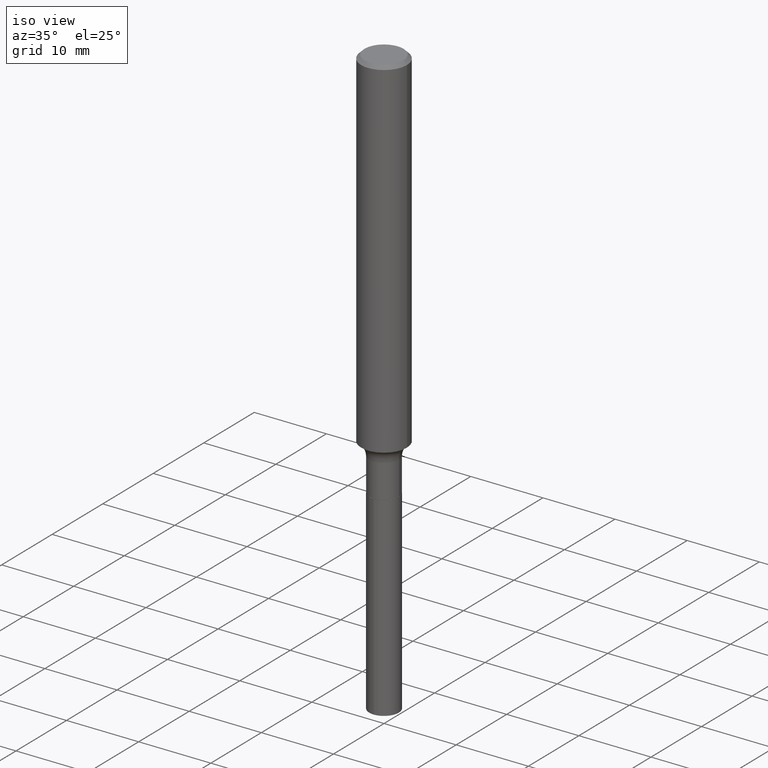
[diagram: clean part render]
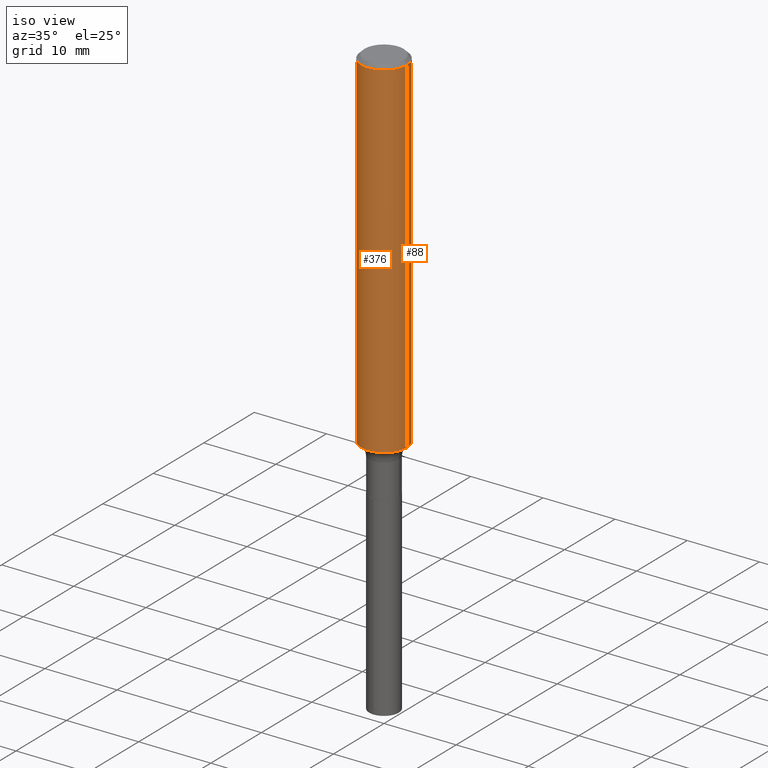
[diagram: same view with one multi-face feature highlighted, each face labeled with its STEP entity id]
A machine part, iso view. The highlighted faces form ONE feature: a constant-radius fillet chain: 2 tangent blend faces with common blend radius 3.175 mm. The faces share edges in the B-rep.
Their STEP definitions:
[1] entity #88 (Cylinder):
#3 = ORIENTED_EDGE ( 'NONE', *, *, #185, .T. ) ;
#4 = EDGE_CURVE ( 'NONE', #362, #324, #256, .T. ) ;
#7 = VERTEX_POINT ( 'NONE', #62 ) ;
#24 = DIRECTION ( 'NONE',  ( 1.000000000000000000, -6.982962677686264344E-15, 0.000000000000000000 ) ) ;
#33 = CARTESIAN_POINT ( 'NONE',  ( 0.1250000000000001110, -8.728703347107842263E-16, 6.095220969744926047E-30 ) ) ;
#62 = CARTESIAN_POINT ( 'NONE',  ( -0.1250000000000000000, -2.470819200019294286E-15, -0.01875000000000014155 ) ) ;
#88 = ADVANCED_FACE ( 'NONE', ( #252 ), #99, .T. ) ;
#99 = CYLINDRICAL_SURFACE ( 'NONE', #168, 0.1250000000000001110 ) ;
#100 = CIRCLE ( 'NONE', #265, 0.1250000000000000000 ) ;
#123 = DIRECTION ( 'NONE',  ( -2.445468806185136597E-29, 3.491481338843145583E-15, 1.000000000000000000 ) ) ;
#146 = LINE ( 'NONE', #235, #393 ) ;
#168 = AXIS2_PLACEMENT_3D ( 'NONE', #439, #216, #214 ) ;
#185 = EDGE_CURVE ( 'NONE', #324, #7, #146, .T. ) ;
#197 = LINE ( 'NONE', #33, #363 ) ;
#202 = CARTESIAN_POINT ( 'NONE',  ( 4.585254011597165626E-31, -6.546527510330947764E-17, -0.01875000000000014155 ) ) ;
#207 = ORIENTED_EDGE ( 'NONE', *, *, #253, .F. ) ;
#214 = DIRECTION ( 'NONE',  ( 1.000000000000000000, -6.982962677686267499E-15, 4.876176775795936353E-29 ) ) ;
#216 = DIRECTION ( 'NONE',  ( -2.445468806185136597E-29, 3.491481338843145583E-15, 1.000000000000000000 ) ) ;
#230 = EDGE_LOOP ( 'NONE', ( #280, #3, #311, #207 ) ) ;
#235 = CARTESIAN_POINT ( 'NONE',  ( -0.1250000000000001110, 8.881784197001260212E-16, -6.148668862818637832E-30 ) ) ;
#245 = CARTESIAN_POINT ( 'NONE',  ( 4.659499201386203466E-29, -6.652529964335534624E-15, -1.905360309483927761 ) ) ;
#247 = DIRECTION ( 'NONE',  ( -2.445468806185136597E-29, 3.491481338843145583E-15, 1.000000000000000000 ) ) ;
#252 = FACE_OUTER_BOUND ( 'NONE', #230, .T. ) ;
#253 = EDGE_CURVE ( 'NONE', #362, #463, #197, .T. ) ;
#256 = CIRCLE ( 'NONE', #461, 0.1250000000000002498 ) ;
#265 = AXIS2_PLACEMENT_3D ( 'NONE', #202, #123, #285 ) ;
#268 = DIRECTION ( 'NONE',  ( -2.445468806185136877E-29, 3.491481338843145188E-15, 1.000000000000000000 ) ) ;
#280 = ORIENTED_EDGE ( 'NONE', *, *, #4, .T. ) ;
#285 = DIRECTION ( 'NONE',  ( 1.000000000000000000, -6.982962677686266711E-15, 0.000000000000000000 ) ) ;
#306 = CARTESIAN_POINT ( 'NONE',  ( -0.1250000000000002776, -5.764351544635407025E-15, -1.905360309483927761 ) ) ;
#311 = ORIENTED_EDGE ( 'NONE', *, *, #442, .F. ) ;
#324 = VERTEX_POINT ( 'NONE', #306 ) ;
#346 = DIRECTION ( 'NONE',  ( -2.445468806185136877E-29, 3.491481338843145188E-15, 1.000000000000000000 ) ) ;
#362 = VERTEX_POINT ( 'NONE', #434 ) ;
#363 = VECTOR ( 'NONE', #346, 39.37007874015748143 ) ;
#393 = VECTOR ( 'NONE', #268, 39.37007874015748143 ) ;
#434 = CARTESIAN_POINT ( 'NONE',  ( 0.1250000000000002776, -7.525400299046321119E-15, -1.905360309483927761 ) ) ;
#439 = CARTESIAN_POINT ( 'NONE',  ( 0.000000000000000000, 0.000000000000000000, 0.000000000000000000 ) ) ;
#442 = EDGE_CURVE ( 'NONE', #463, #7, #100, .T. ) ;
#461 = AXIS2_PLACEMENT_3D ( 'NONE', #245, #247, #24 ) ;
#462 = CARTESIAN_POINT ( 'NONE',  ( 0.1250000000000000000, -9.383356098140928781E-16, -0.01875000000000014155 ) ) ;
#463 = VERTEX_POINT ( 'NONE', #462 ) ;
[2] entity #376 (Cylinder):
#7 = VERTEX_POINT ( 'NONE', #62 ) ;
#33 = CARTESIAN_POINT ( 'NONE',  ( 0.1250000000000001110, -8.728703347107842263E-16, 6.095220969744926047E-30 ) ) ;
#62 = CARTESIAN_POINT ( 'NONE',  ( -0.1250000000000000000, -2.470819200019294286E-15, -0.01875000000000014155 ) ) ;
#74 = AXIS2_PLACEMENT_3D ( 'NONE', #77, #431, #437 ) ;
#77 = CARTESIAN_POINT ( 'NONE',  ( 0.000000000000000000, 0.000000000000000000, 0.000000000000000000 ) ) ;
#117 = ORIENTED_EDGE ( 'NONE', *, *, #453, .T. ) ;
#146 = LINE ( 'NONE', #235, #393 ) ;
#148 = ORIENTED_EDGE ( 'NONE', *, *, #185, .F. ) ;
#165 = CYLINDRICAL_SURFACE ( 'NONE', #74, 0.1250000000000001110 ) ;
#177 = CIRCLE ( 'NONE', #305, 0.1250000000000000000 ) ;
#185 = EDGE_CURVE ( 'NONE', #324, #7, #146, .T. ) ;
#192 = EDGE_CURVE ( 'NONE', #7, #463, #177, .T. ) ;
#193 = DIRECTION ( 'NONE',  ( 1.000000000000000000, -6.982962677686266711E-15, 0.000000000000000000 ) ) ;
#197 = LINE ( 'NONE', #33, #363 ) ;
#235 = CARTESIAN_POINT ( 'NONE',  ( -0.1250000000000001110, 8.881784197001260212E-16, -6.148668862818637832E-30 ) ) ;
#253 = EDGE_CURVE ( 'NONE', #362, #463, #197, .T. ) ;
#264 = CARTESIAN_POINT ( 'NONE',  ( 4.585254011597165626E-31, -6.546527510330947764E-17, -0.01875000000000014155 ) ) ;
#268 = DIRECTION ( 'NONE',  ( -2.445468806185136877E-29, 3.491481338843145188E-15, 1.000000000000000000 ) ) ;
#282 = FACE_OUTER_BOUND ( 'NONE', #418, .T. ) ;
#284 = CIRCLE ( 'NONE', #386, 0.1250000000000002498 ) ;
#305 = AXIS2_PLACEMENT_3D ( 'NONE', #264, #456, #193 ) ;
#306 = CARTESIAN_POINT ( 'NONE',  ( -0.1250000000000002776, -5.764351544635407025E-15, -1.905360309483927761 ) ) ;
#308 = ORIENTED_EDGE ( 'NONE', *, *, #192, .F. ) ;
#320 = DIRECTION ( 'NONE',  ( 1.000000000000000000, -6.982962677686264344E-15, 0.000000000000000000 ) ) ;
#324 = VERTEX_POINT ( 'NONE', #306 ) ;
#346 = DIRECTION ( 'NONE',  ( -2.445468806185136877E-29, 3.491481338843145188E-15, 1.000000000000000000 ) ) ;
#356 = DIRECTION ( 'NONE',  ( -2.445468806185136597E-29, 3.491481338843145583E-15, 1.000000000000000000 ) ) ;
#362 = VERTEX_POINT ( 'NONE', #434 ) ;
#363 = VECTOR ( 'NONE', #346, 39.37007874015748143 ) ;
#376 = ADVANCED_FACE ( 'NONE', ( #282 ), #165, .T. ) ;
#386 = AXIS2_PLACEMENT_3D ( 'NONE', #396, #356, #320 ) ;
#389 = ORIENTED_EDGE ( 'NONE', *, *, #253, .T. ) ;
#393 = VECTOR ( 'NONE', #268, 39.37007874015748143 ) ;
#396 = CARTESIAN_POINT ( 'NONE',  ( 4.659499201386203466E-29, -6.652529964335534624E-15, -1.905360309483927761 ) ) ;
#418 = EDGE_LOOP ( 'NONE', ( #148, #117, #389, #308 ) ) ;
#431 = DIRECTION ( 'NONE',  ( -2.445468806185136597E-29, 3.491481338843145583E-15, 1.000000000000000000 ) ) ;
#434 = CARTESIAN_POINT ( 'NONE',  ( 0.1250000000000002776, -7.525400299046321119E-15, -1.905360309483927761 ) ) ;
#437 = DIRECTION ( 'NONE',  ( 1.000000000000000000, -6.982962677686267499E-15, 4.876176775795936353E-29 ) ) ;
#453 = EDGE_CURVE ( 'NONE', #324, #362, #284, .T. ) ;
#456 = DIRECTION ( 'NONE',  ( -2.445468806185136597E-29, 3.491481338843145583E-15, 1.000000000000000000 ) ) ;
#462 = CARTESIAN_POINT ( 'NONE',  ( 0.1250000000000000000, -9.383356098140928781E-16, -0.01875000000000014155 ) ) ;
#463 = VERTEX_POINT ( 'NONE', #462 ) ;